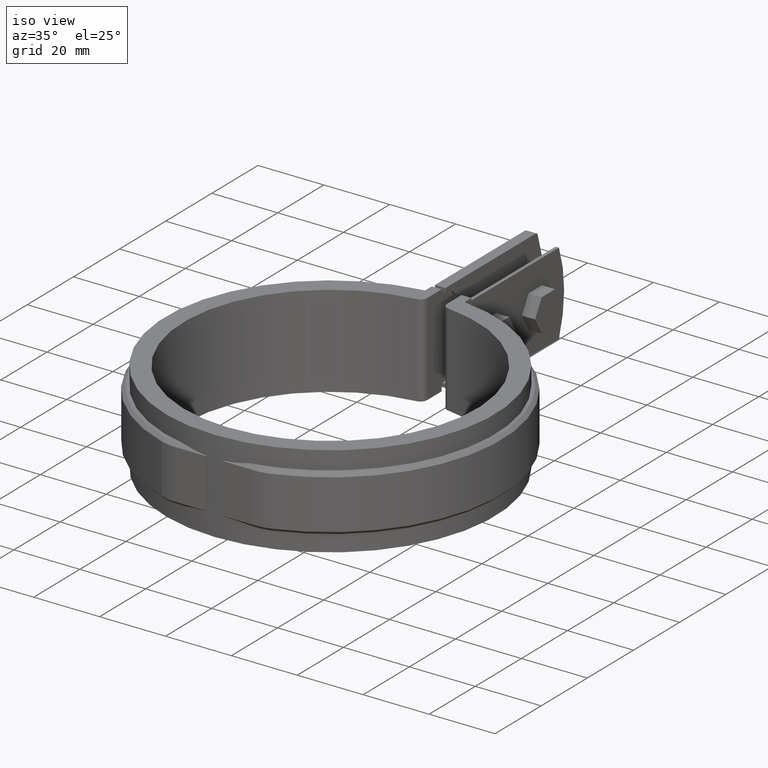
[diagram: clean part render]
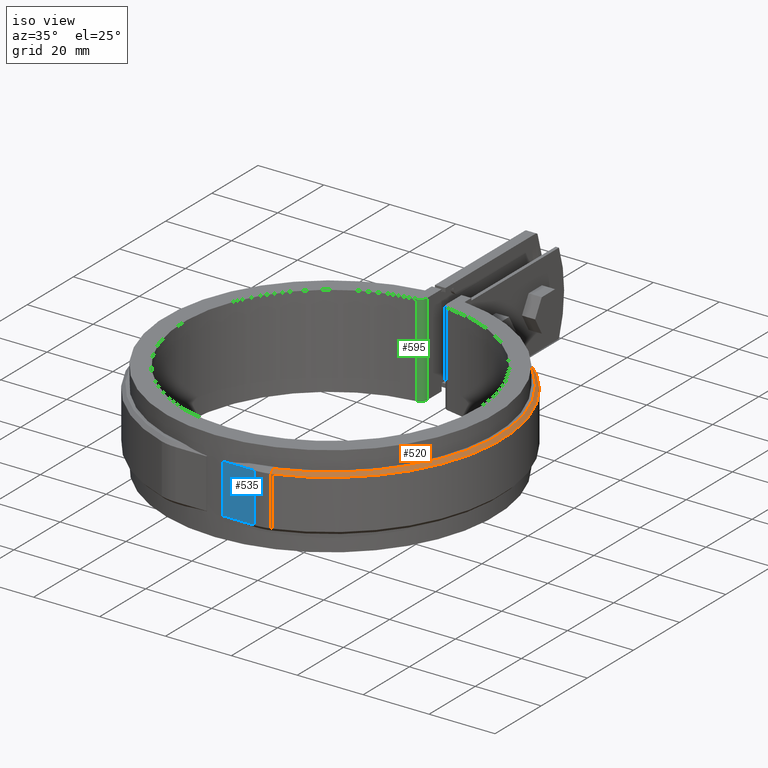
[diagram: same view with three faces highlighted in distinct colors, each labeled with its STEP entity id]
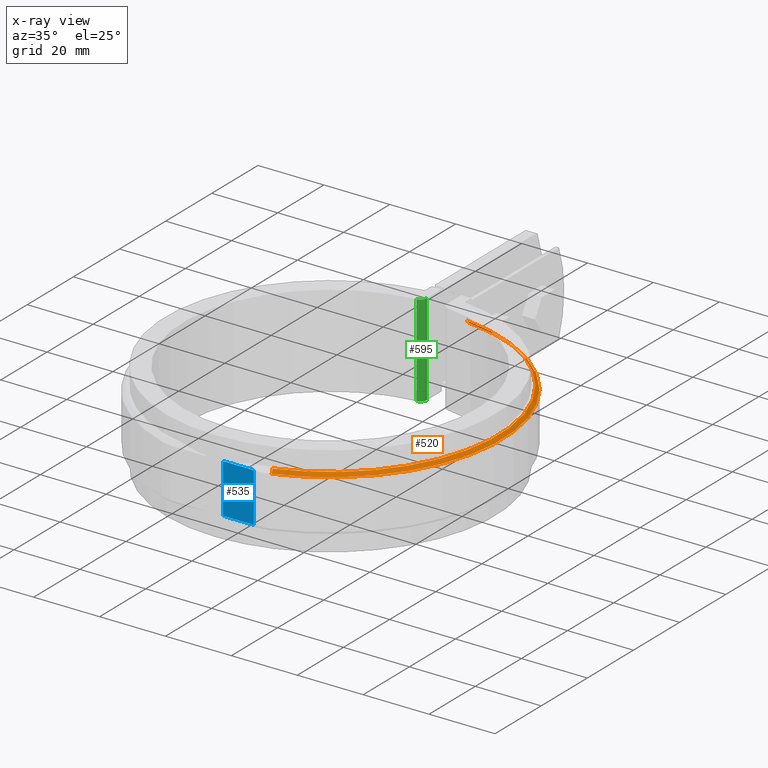
[diagram: x-ray of the same camera — body ghosted, the three highlighted faces saturated]
A machine part, iso view with three faces highlighted in distinct colors.
The next image is the same camera in x-ray (body ghosted, the three faces saturated) — at least one of them is partly hidden behind the body in this view.
Their STEP definitions:

[orange] entity #520 — the highlighted conical surface has half-angle 45 deg.
#520 = ADVANCED_FACE( '', ( #969 ), #970, .T. );
#969 = FACE_OUTER_BOUND( '', #2048, .T. );
#970 = CONICAL_SURFACE( '', #2049, 52.0000000000000, 0.785398163397448 );
#2048 = EDGE_LOOP( '', ( #4620, #4621, #4622, #4623 ) );
#2049 = AXIS2_PLACEMENT_3D( '', #4624, #4625, #4626 );
#4620 = ORIENTED_EDGE( '', *, *, #7753, .F. );
#4621 = ORIENTED_EDGE( '', *, *, #7754, .F. );
#4622 = ORIENTED_EDGE( '', *, *, #7745, .F. );
#4623 = ORIENTED_EDGE( '', *, *, #7750, .F. );
#4624 = CARTESIAN_POINT( '', ( 0.000000000000000, 6.93889390390723E-015, 7.50000000000000 ) );
#4625 = DIRECTION( '', ( 0.000000000000000, 0.000000000000000, -1.00000000000000 ) );
#4626 = DIRECTION( '', ( -1.00000000000000, 0.000000000000000, 0.000000000000000 ) );
#7745 = EDGE_CURVE( '', #8856, #8857, #8858, .T. );
#7750 = EDGE_CURVE( '', #8864, #8856, #8867, .T. );
#7753 = EDGE_CURVE( '', #8871, #8864, #8872, .T. );
#7754 = EDGE_CURVE( '', #8857, #8871, #8873, .T. );
#8856 = VERTEX_POINT( '', #11979 );
#8857 = VERTEX_POINT( '', #11980 );
#8858 = LINE( '', #11981, #11982 );
#8864 = VERTEX_POINT( '', #11989 );
#8867 = CIRCLE( '', #11993, 52.0000000000000 );
#8871 = VERTEX_POINT( '', #11998 );
#8872 = B_SPLINE_CURVE_WITH_KNOTS( '', 3, ( #11999, #12000, #12001, #12002 ), .UNSPECIFIED., .F., .F., ( 4, 4 ), ( 707.172066032100, 707.173498034365 ), .UNSPECIFIED. );
#8873 = CIRCLE( '', #12003, 51.0000000000000 );
#11979 = CARTESIAN_POINT( '', ( 16.6585009458195, -49.2594594594595, 7.49999999999995 ) );
#11980 = CARTESIAN_POINT( '', ( 16.3381451583999, -48.3121621621621, 8.50000000000000 ) );
#11981 = CARTESIAN_POINT( '', ( 16.6585009458195, -49.2594594594594, 7.50000000000000 ) );
#11982 = VECTOR( '', #14805, 1000.00000000000 );
#11989 = CARTESIAN_POINT( '', ( 6.00000000000001, 51.6526862805799, 7.50000000000000 ) );
#11993 = AXIS2_PLACEMENT_3D( '', #14814, #14815, #14816 );
#11998 = CARTESIAN_POINT( '', ( 6.00000000000001, 50.6458290484024, 8.50000000000000 ) );
#11999 = CARTESIAN_POINT( '', ( 6.00000000000001, 50.6458290483949, 8.50000000000751 ) );
#12000 = CARTESIAN_POINT( '', ( 6.00000000000001, 50.9814705728936, 8.16668934762893 ) );
#12001 = CARTESIAN_POINT( '', ( 6.00000000000001, 51.3170892156865, 7.83335557518499 ) );
#12002 = CARTESIAN_POINT( '', ( 6.00000000000001, 51.6526862805480, 7.50000000003160 ) );
#12003 = AXIS2_PLACEMENT_3D( '', #14821, #14822, #14823 );
#14805 = DIRECTION( '', ( -0.226525749676757, 0.669840342718608, 0.707106781186548 ) );
#14814 = CARTESIAN_POINT( '', ( 0.000000000000000, 6.93889390390723E-015, 7.50000000000000 ) );
#14815 = DIRECTION( '', ( 0.000000000000000, 0.000000000000000, -1.00000000000000 ) );
#14816 = DIRECTION( '', ( -1.00000000000000, 0.000000000000000, 0.000000000000000 ) );
#14821 = CARTESIAN_POINT( '', ( 0.000000000000000, 6.93889390390723E-015, 8.50000000000000 ) );
#14822 = DIRECTION( '', ( 0.000000000000000, 0.000000000000000, 1.00000000000000 ) );
#14823 = DIRECTION( '', ( 1.00000000000000, 0.000000000000000, 0.000000000000000 ) );

[blue] entity #535 — the highlighted planar face has unit normal (0, -1, 0).
#535 = ADVANCED_FACE( '', ( #999 ), #1000, .T. );
#999 = FACE_OUTER_BOUND( '', #2083, .T. );
#1000 = PLANE( '', #2084 );
#2083 = EDGE_LOOP( '', ( #4882, #4883, #4884, #4885 ) );
#2084 = AXIS2_PLACEMENT_3D( '', #4886, #4887, #4888 );
#4882 = ORIENTED_EDGE( '', *, *, #7755, .T. );
#4883 = ORIENTED_EDGE( '', *, *, #7837, .T. );
#4884 = ORIENTED_EDGE( '', *, *, #7838, .F. );
#4885 = ORIENTED_EDGE( '', *, *, #7823, .T. );
#4886 = CARTESIAN_POINT( '', ( 11.8531641345255, -50.0500000000000, -8.50000000000000 ) );
#4887 = DIRECTION( '', ( 0.000000000000000, -1.00000000000000, 0.000000000000000 ) );
#4888 = DIRECTION( '', ( 0.000000000000000, 0.000000000000000, -1.00000000000000 ) );
#7755 = EDGE_CURVE( '', #8874, #8861, #8875, .T. );
#7823 = EDGE_CURVE( '', #9001, #8874, #9002, .T. );
#7837 = EDGE_CURVE( '', #8861, #9025, #9026, .F. );
#7838 = EDGE_CURVE( '', #9001, #9025, #9027, .T. );
#8861 = VERTEX_POINT( '', #11985 );
#8874 = VERTEX_POINT( '', #12004 );
#8875 = LINE( '', #12005, #12006 );
#9001 = VERTEX_POINT( '', #12296 );
#9002 = LINE( '', #12297, #12298 );
#9025 = VERTEX_POINT( '', #12342 );
#9026 = LINE( '', #12343, #12344 );
#9027 = LINE( '', #12345, #12346 );
#11985 = CARTESIAN_POINT( '', ( 11.8531641345254, -50.0500000000000, 7.50000000000000 ) );
#12004 = CARTESIAN_POINT( '', ( 11.8531641345254, -50.0500000000000, -7.50000000000000 ) );
#12005 = CARTESIAN_POINT( '', ( 11.8531641345254, -50.0500000000000, -8.50000000000000 ) );
#12006 = VECTOR( '', #14824, 1000.00000000000 );
#12296 = CARTESIAN_POINT( '', ( 2.50000000000000, -50.0500000000000, -7.50000000000000 ) );
#12297 = CARTESIAN_POINT( '', ( 11.8531641345255, -50.0500000000000, -7.50000000000000 ) );
#12298 = VECTOR( '', #14878, 1000.00000000000 );
#12342 = CARTESIAN_POINT( '', ( 2.50000000000000, -50.0500000000000, 7.50000000000000 ) );
#12343 = CARTESIAN_POINT( '', ( 11.8531641345255, -50.0500000000000, 7.50000000000000 ) );
#12344 = VECTOR( '', #14892, 1000.00000000000 );
#12345 = CARTESIAN_POINT( '', ( 2.50000000000000, -50.0500000000000, -8.50000000000000 ) );
#12346 = VECTOR( '', #14893, 1000.00000000000 );
#14824 = DIRECTION( '', ( 0.000000000000000, 0.000000000000000, 1.00000000000000 ) );
#14878 = DIRECTION( '', ( 1.00000000000000, 0.000000000000000, 0.000000000000000 ) );
#14892 = DIRECTION( '', ( 1.00000000000000, 0.000000000000000, 0.000000000000000 ) );
#14893 = DIRECTION( '', ( 0.000000000000000, 0.000000000000000, 1.00000000000000 ) );

[green] entity #595 — the highlighted cylindrical surface (edge-blend (fillet) strip) has radius 2 mm, axis along (0, 0, -1).
#595 = ADVANCED_FACE( '', ( #1122 ), #1123, .T. );
#1122 = FACE_OUTER_BOUND( '', #2444, .T. );
#1123 = CYLINDRICAL_SURFACE( '', #2445, 2.00000000000000 );
#2444 = EDGE_LOOP( '', ( #5670, #5671, #5672, #5673 ) );
#2445 = AXIS2_PLACEMENT_3D( '', #5674, #5675, #5676 );
#5670 = ORIENTED_EDGE( '', *, *, #8016, .T. );
#5671 = ORIENTED_EDGE( '', *, *, #8011, .F. );
#5672 = ORIENTED_EDGE( '', *, *, #8015, .F. );
#5673 = ORIENTED_EDGE( '', *, *, #8017, .T. );
#5674 = CARTESIAN_POINT( '', ( -4.99999999999934, 46.2304012528553, 14.0000000000000 ) );
#5675 = DIRECTION( '', ( 0.000000000000000, 0.000000000000000, -1.00000000000000 ) );
#5676 = DIRECTION( '', ( 0.107526881720430, 0.994202177480758, 0.000000000000000 ) );
#8011 = EDGE_CURVE( '', #9303, #9301, #9305, .T. );
#8015 = EDGE_CURVE( '', #9309, #9303, #9311, .T. );
#8016 = EDGE_CURVE( '', #9312, #9301, #9313, .T. );
#8017 = EDGE_CURVE( '', #9309, #9312, #9314, .T. );
#9301 = VERTEX_POINT( '', #13189 );
#9303 = VERTEX_POINT( '', #13192 );
#9305 = LINE( '', #13195, #13196 );
#9309 = VERTEX_POINT( '', #13201 );
#9311 = CIRCLE( '', #13203, 2.00000000000000 );
#9312 = VERTEX_POINT( '', #13204 );
#9313 = CIRCLE( '', #13205, 2.00000000000000 );
#9314 = LINE( '', #13206, #13207 );
#13189 = CARTESIAN_POINT( '', ( -2.99999999999934, 46.2304012528553, -14.0000000000000 ) );
#13192 = CARTESIAN_POINT( '', ( -2.99999999999934, 46.2304012528553, 14.0000000000000 ) );
#13195 = CARTESIAN_POINT( '', ( -2.99999999999934, 46.2304012528553, 14.0000000000000 ) );
#13196 = VECTOR( '', #15078, 1000.00000000000 );
#13201 = CARTESIAN_POINT( '', ( -4.78494623655852, 44.2419968978938, 14.0000000000000 ) );
#13203 = AXIS2_PLACEMENT_3D( '', #15086, #15087, #15088 );
#13204 = CARTESIAN_POINT( '', ( -4.78494623655852, 44.2419968978938, -14.0000000000000 ) );
#13205 = AXIS2_PLACEMENT_3D( '', #15089, #15090, #15091 );
#13206 = CARTESIAN_POINT( '', ( -4.78494623655854, 44.2419968978938, 14.0000000000000 ) );
#13207 = VECTOR( '', #15092, 1000.00000000000 );
#15078 = DIRECTION( '', ( 0.000000000000000, 0.000000000000000, -1.00000000000000 ) );
#15086 = CARTESIAN_POINT( '', ( -4.99999999999934, 46.2304012528553, 14.0000000000000 ) );
#15087 = DIRECTION( '', ( 0.000000000000000, 0.000000000000000, 1.00000000000000 ) );
#15088 = DIRECTION( '', ( 1.00000000000000, 0.000000000000000, 0.000000000000000 ) );
#15089 = CARTESIAN_POINT( '', ( -4.99999999999934, 46.2304012528553, -14.0000000000000 ) );
#15090 = DIRECTION( '', ( 0.000000000000000, 0.000000000000000, 1.00000000000000 ) );
#15091 = DIRECTION( '', ( 1.00000000000000, 0.000000000000000, 0.000000000000000 ) );
#15092 = DIRECTION( '', ( 0.000000000000000, 0.000000000000000, -1.00000000000000 ) );